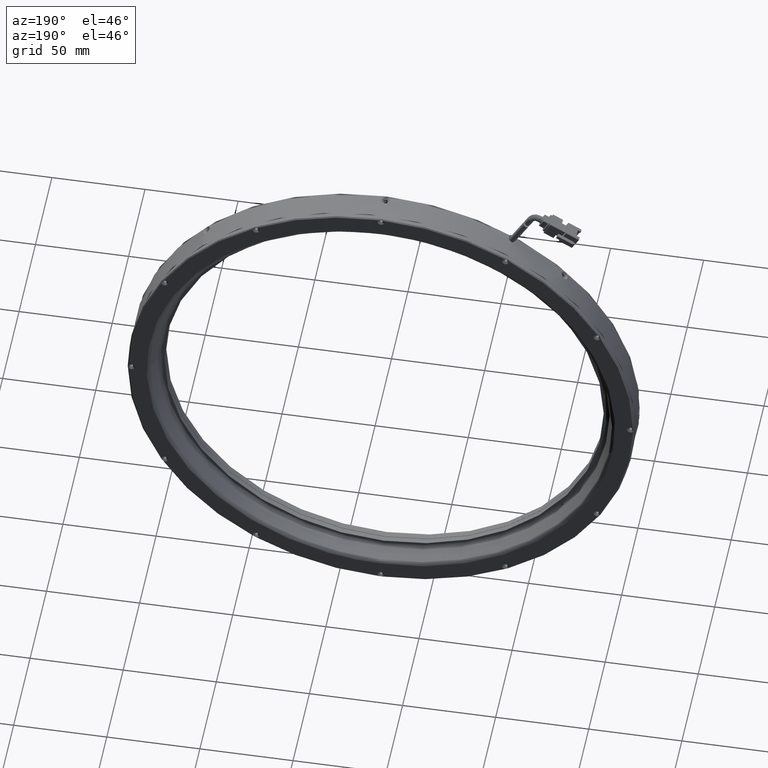
[diagram: clean part render]
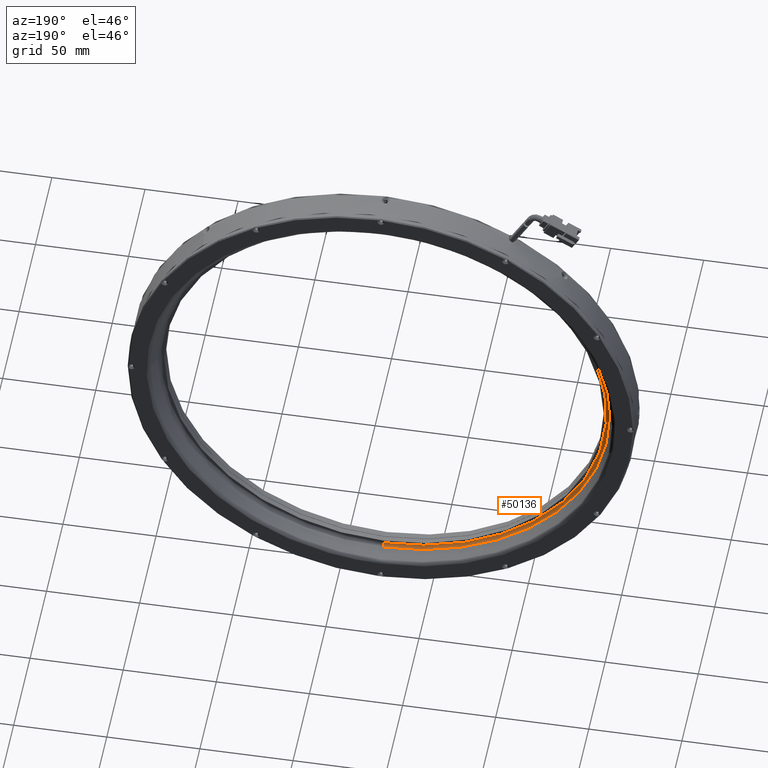
[diagram: same view with one face highlighted and labeled with its STEP entity id]
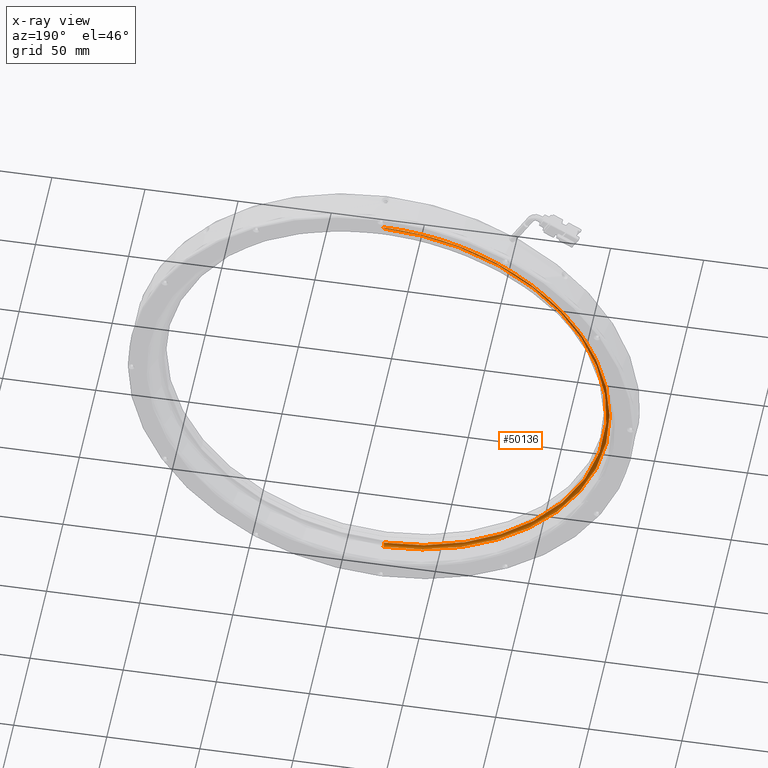
[diagram: x-ray of the same camera — body ghosted, the highlighted face saturated]
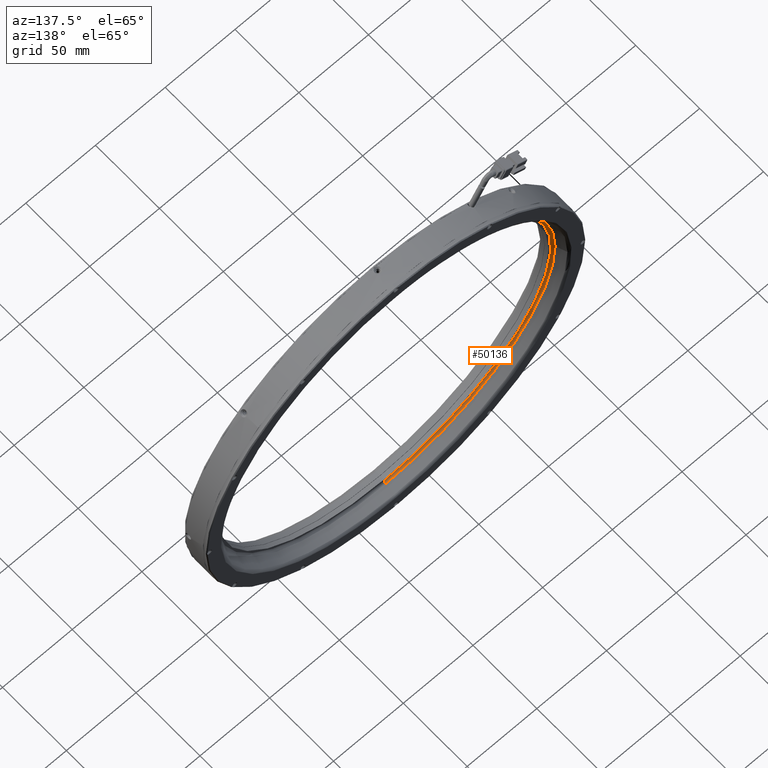
[diagram: same view with one face highlighted and labeled with its STEP entity id]
A machine part, auxiliary view. The second image highlights one B-rep face of the part: STEP entity #50136.
The next image is the same camera in x-ray: the body ghosted, the highlighted face saturated — about 0% of this face is hidden behind the body in this view.
A second angle (auxiliary view) of the same face is appended — the face is thin or edge-on in the first view.
In plain terms, the highlighted face is a freeform B-spline surface patch.
Its self-contained STEP definition (entity closure, byte-faithful):
#655 = CARTESIAN_POINT ( 'NONE',  ( -142.3293162726967000, 5.069982640997490200, -11.14572356873706100 ) ) ;
#1112 = CARTESIAN_POINT ( 'NONE',  ( -142.3763801926151900, 5.069982640997490200, 10.63016265927367400 ) ) ;
#1116 = FACE_OUTER_BOUND ( 'NONE', #24404, .T. ) ;
#1554 = CARTESIAN_POINT ( 'NONE',  ( -139.1158593632203000, 5.069982640997489300, 29.67247452022851900 ) ) ;
#1779 = EDGE_CURVE ( 'NONE', #97120, #31714, #10542, .T. ) ;
#2014 = CARTESIAN_POINT ( 'NONE',  ( -134.5462056487579000, 5.069982640997487500, 43.77693603782415700 ) ) ;
#2472 = CARTESIAN_POINT ( 'NONE',  ( -125.2685960343780400, 5.069982640997489300, 62.42037116927498600 ) ) ;
#2927 = CARTESIAN_POINT ( 'NONE',  ( -113.5124740757989300, 5.069982640997489300, 78.55408161243610700 ) ) ;
#3344 = CARTESIAN_POINT ( 'NONE',  ( -89.46998820333249100, 5.069982640997488400, 99.56662697933637700 ) ) ;
#3798 = CARTESIAN_POINT ( 'NONE',  ( -73.73980043955505400, 5.069982640997487500, 108.4186332954707600 ) ) ;
#4099 = CARTESIAN_POINT ( 'NONE',  ( -23.30300868215380200, 5.069982640997503500, 119.5469150082056200 ) ) ;
#4264 = CARTESIAN_POINT ( 'NONE',  ( -56.60891110841927800, 5.069982640997488400, 114.8138001519853800 ) ) ;
#4531 = CARTESIAN_POINT ( 'NONE',  ( -264.1360663754177300, 5.069982640997496400, 120.4165288466319800 ) ) ;
#4692 = CARTESIAN_POINT ( 'NONE',  ( -43.23247024929435900, 5.069982640997488400, 117.8885876832204900 ) ) ;
#5230 = CARTESIAN_POINT ( 'NONE',  ( -27.78526670614666500, 5.069982640997488400, -119.4864677336735800 ) ) ;
#5695 = CARTESIAN_POINT ( 'NONE',  ( -44.65719858477398000, 5.069982640997489300, -117.6243496854076100 ) ) ;
#6143 = CARTESIAN_POINT ( 'NONE',  ( -58.08014844089670700, 5.069982640997488400, -114.3933952819071900 ) ) ;
#6620 = CARTESIAN_POINT ( 'NONE',  ( -77.43235357023621600, 5.069982640997488400, -106.5907609495086900 ) ) ;
#7085 = CARTESIAN_POINT ( 'NONE',  ( -92.96812802175973900, 5.069982640997488400, -97.18858226209849200 ) ) ;
#7211 = ORIENTED_EDGE ( 'NONE', *, *, #30860, .T. ) ;
#7398 = B_SPLINE_CURVE_WITH_KNOTS ( 'NONE', 3,
 ( #67650, #130162, #5230, #78045, #15784, #88554, #26249, #99108, #36755, #109526, #47207, #120086, #57646, #130620, #68096, #5695, #78509, #16224, #89023, #26693, #99558, #37179, #110007, #47641, #120531, #58119, #131075, #68538, #6143, #78995, #16668, #89480, #27166, #100018, #37666, #110451, #48092, #120979, #58565, #131507, #68974, #6620, #79437, #17101, #89944, #27625, #100461, #38098, #110879, #48536, #121424, #59017, #131958, #69453, #7085, #79884, #17554, #90385, #28066, #100883, #38547, #111310, #49005, #121875, #59480, #132400, #69900, #7540, #80317, #17983, #90845, #28492, #101322, #39003, #111773, #49436, #122340, #59914, #132840, #70335, #7976, #80765, #18429, #91296, #28926, #101762, #39453, #112197, #49895, #122797, #60362, #133267, #70778, #8426, #81202, #18874, #91740, #29375, #102226, #39898, #112642, #50336, #123242, #60779, #133725, #71228, #8868, #81623, #21200, #94023, #31683, #104541, #42237, #115037, #52628, #125556, #63075, #655, #73510, #11221, #83960, #21669, #94491, #32138, #104997, #42688, #115486, #53050, #125999, #63522, #1112, #73948, #11690, #84384, #22138, #94949, #32615, #105438, #43133, #115934, #53521, #126437, #63946, #1554, #74410, #12134, #84812, #22576, #95416, #33051, #105894, #43602, #116389, #53947, #126886, #64402, #2014, #74854, #12589, #85254, #23047, #95866, #33500, #106323, #44049, #116842, #54393, #127329, #64846, #2472, #75274, #13028, #85729, #23491, #96307, #33938, #106767, #44490, #117294, #54869, #127797, #65297, #2927, #75710, #13462, #86186, #23935, #96726, #34409, #107241, #44939, #117732, #55308, #128254, #65728, #3344, #76167, #13912, #86636, #24345, #97210, #34856, #107679, #45367, #118186, #55755, #128692, #66196, #3798, #76623, #14347, #87088, #24802, #97663, #35305, #108109, #45802, #118646, #56189, #129128, #66644, #4264, #77055, #14786, #87557, #25242, #98111, #35738, #108567, #46227, #119094, #56629, #129590, #67083, #4692, #77494, #15241, #88008, #25685, #98555, #36190, #109000, #46670, #119532, #57072, #130067 ),
 .UNSPECIFIED., .F., .F.,
 ( 4, 1, 1, 1, 1, 1, 2, 2, 1, 1, 1, 1, 1, 2, 2, 1, 1, 1, 1, 1, 2, 2, 1, 1, 1, 1, 1, 2, 2, 1, 1, 1, 1, 2, 2, 1, 1, 1, 1, 2, 2, 1, 1, 1, 2, 2, 2, 1, 1, 1, 2, 2, 1, 1, 1, 1, 2, 2, 1, 1, 1, 1, 2, 2, 1, 1, 1, 1, 1, 2, 2, 1, 1, 1, 1, 1, 2, 2, 1, 1, 1, 1, 1, 2, 2, 1, 1, 1, 1, 1, 2, 2, 2, 1, 1, 1, 1, 1, 2, 2, 1, 1, 1, 1, 1, 2, 2, 1, 1, 1, 1, 1, 2, 2, 1, 1, 1, 1, 1, 2, 2, 1, 1, 1, 1, 2, 2, 1, 1, 1, 1, 2, 2, 1, 1, 1, 2, 2, 2, 1, 1, 1, 2, 2, 1, 1, 1, 1, 2, 2, 1, 1, 1, 1, 2, 2, 1, 1, 1, 1, 1, 2, 2, 1, 1, 1, 1, 1, 2, 2, 1, 1, 1, 1, 1, 2, 2, 1, 1, 1, 1, 1, 2, 2, 4 ),
 ( 0.0000000000000000000, 0.01562499999999889300, 0.02343749999999832800, 0.02734374999999802900, 0.02929687499999788400, 0.03027343749999781800, 0.03076171874999781400, 0.03124999999999780700, 0.04687499999999895200, 0.05468749999999950700, 0.05859374999999979200, 0.06054687499999989600, 0.06152343749999995800, 0.06201171874999995800, 0.06249999999999995800, 0.07812499999999966700, 0.08593749999999950000, 0.08984374999999940300, 0.09179687499999938900, 0.09277343749999936200, 0.09326171874999936200, 0.09374999999999934800, 0.1093749999999986800, 0.1171874999999983200, 0.1210937499999981700, 0.1230468749999980400, 0.1240234374999979700, 0.1245117187499979300, 0.1249999999999979200, 0.1406249999999960300, 0.1484374999999950600, 0.1523437499999945300, 0.1542968749999942500, 0.1552734374999941700, 0.1562499999999940600, 0.1718749999999928400, 0.1796874999999921500, 0.1835937499999918100, 0.1855468749999916700, 0.1865234374999916200, 0.1874999999999915300, 0.2031249999999916200, 0.2109374999999916500, 0.2148437499999917000, 0.2167968749999917800, 0.2187499999999918700, 0.2499999999999943900, 0.2656249999999956100, 0.2734374999999962300, 0.2773437499999965600, 0.2792968749999967800, 0.2812499999999969500, 0.2968749999999984500, 0.3046874999999991700, 0.3085937499999995000, 0.3105468749999997200, 0.3115234374999998300, 0.3125000000000000000, 0.3281250000000015000, 0.3359375000000022800, 0.3398437500000026100, 0.3417968750000027800, 0.3427734375000028300, 0.3437500000000028300, 0.3593750000000027800, 0.3671875000000027200, 0.3710937500000027200, 0.3730468750000027800, 0.3740234375000027800, 0.3745117187500027200, 0.3750000000000026600, 0.3906250000000002200, 0.3984374999999990000, 0.4023437499999983900, 0.4042968749999980600, 0.4052734374999978900, 0.4057617187499978400, 0.4062499999999978400, 0.4218749999999965600, 0.4296874999999959500, 0.4335937499999956100, 0.4355468749999954500, 0.4365234374999953900, 0.4370117187499953400, 0.4374999999999953400, 0.4531249999999937800, 0.4609374999999930100, 0.4648437499999926200, 0.4667968749999923900, 0.4677734374999922800, 0.4682617187499921700, 0.4687499999999921200, 0.4999999999999885600, 0.5156249999999867900, 0.5234374999999859000, 0.5273437499999855700, 0.5292968749999852300, 0.5302734374999852300, 0.5307617187499851200, 0.5312499999999851200, 0.5468749999999827900, 0.5546874999999815700, 0.5585937499999810200, 0.5605468749999806800, 0.5615234374999805700, 0.5620117187499804600, 0.5624999999999804600, 0.5781249999999786800, 0.5859374999999778000, 0.5898437499999773500, 0.5917968749999770200, 0.5927734374999769100, 0.5932617187499768000, 0.5937499999999768000, 0.6093749999999759100, 0.6171874999999754600, 0.6210937499999753500, 0.6230468749999751300, 0.6240234374999751300, 0.6245117187499751300, 0.6249999999999750200, 0.6406249999999739100, 0.6484374999999733500, 0.6523437499999731300, 0.6542968749999730200, 0.6552734374999729100, 0.6562499999999728000, 0.6718749999999716900, 0.6796874999999711300, 0.6835937499999709100, 0.6855468749999709100, 0.6865234374999709100, 0.6874999999999709100, 0.7031249999999709100, 0.7109374999999709100, 0.7148437499999709100, 0.7167968749999709100, 0.7187499999999708000, 0.7499999999999708000, 0.7656249999999709100, 0.7734374999999709100, 0.7773437499999709100, 0.7792968749999710200, 0.7812499999999711300, 0.7968749999999713600, 0.8046874999999714700, 0.8085937499999715800, 0.8105468749999716900, 0.8115234374999716900, 0.8124999999999718000, 0.8281249999999730200, 0.8359374999999735800, 0.8398437499999738000, 0.8417968749999740200, 0.8427734374999741300, 0.8437499999999743500, 0.8593749999999764600, 0.8671874999999775700, 0.8710937499999780200, 0.8730468749999782400, 0.8740234374999783500, 0.8745117187499784600, 0.8749999999999785700, 0.8906249999999810200, 0.8984374999999822400, 0.9023437499999827900, 0.9042968749999831200, 0.9052734374999832400, 0.9057617187499833500, 0.9062499999999834600, 0.9218749999999866800, 0.9296874999999883400, 0.9335937499999891200, 0.9355468749999895600, 0.9365234374999897900, 0.9370117187499899000, 0.9374999999999900100, 0.9531249999999928900, 0.9609374999999943400, 0.9648437499999950000, 0.9667968749999953400, 0.9677734374999955600, 0.9682617187499955600, 0.9687499999999956700, 1.000000000000000000 ),
 .UNSPECIFIED. ) ;
#7540 = CARTESIAN_POINT ( 'NONE',  ( -115.7879319277401300, 5.069982640997489300, -75.75005846452170000 ) ) ;
#7976 = CARTESIAN_POINT ( 'NONE',  ( -128.6688690955014400, 5.069982640997488400, -56.47970943259198200 ) ) ;
#8426 = CARTESIAN_POINT ( 'NONE',  ( -134.4338042642546600, 5.069982640997487500, -44.06149078274599200 ) ) ;
#8868 = CARTESIAN_POINT ( 'NONE',  ( -140.5403773136674500, 5.069982640997487500, -23.39376508023037400 ) ) ;
#10542 = CIRCLE ( 'NONE', #55468, 121.4263002497774600 ) ;
#11221 = CARTESIAN_POINT ( 'NONE',  ( -142.3558908563925300, 5.069982640997489300, -10.85723855600854800 ) ) ;
#11690 = CARTESIAN_POINT ( 'NONE',  ( -142.1996916718607900, 5.069982640997488400, 12.58893874801731800 ) ) ;
#12134 = CARTESIAN_POINT ( 'NONE',  ( -138.4627273666401900, 5.069982640997489300, 32.09058503302802000 ) ) ;
#12589 = CARTESIAN_POINT ( 'NONE',  ( -134.4793276859653600, 5.069982640997491100, 43.94650097621106300 ) ) ;
#13028 = CARTESIAN_POINT ( 'NONE',  ( -123.8468937346277100, 5.069982640997489300, 64.67230532272036200 ) ) ;
#13462 = CARTESIAN_POINT ( 'NONE',  ( -106.3763729345818900, 5.069982640997489300, 85.99149114784505300 ) ) ;
#13525 = EDGE_CURVE ( 'NONE', #39169, #128696, #7398, .T. ) ;
#13912 = CARTESIAN_POINT ( 'NONE',  ( -88.93482222227910900, 5.069982640997490200, 99.91970163262510600 ) ) ;
#14347 = CARTESIAN_POINT ( 'NONE',  ( -68.92920628659278700, 5.069982640997488400, 110.4995833237091200 ) ) ;
#14398 =( BOUNDED_SURFACE ( )  B_SPLINE_SURFACE ( 3, 3, ( 
 ( #4099, #118928, #56484, #129447 ),
 ( #66926, #4531, #77338, #15086 ),
 ( #87852, #25529, #98407, #36048 ),
 ( #108837, #46515, #119377, #56925 ) ),
 .UNSPECIFIED., .F., .F., .F. ) 
 B_SPLINE_SURFACE_WITH_KNOTS ( ( 4, 4 ),
 ( 4, 4 ),
 ( 0.0000000000000000000, 1.000000000000000000 ),
 ( 0.0000000000000000000, 1.000000000000000000 ),
 .UNSPECIFIED. ) 
 GEOMETRIC_REPRESENTATION_ITEM ( )  RATIONAL_B_SPLINE_SURFACE ( (
 ( 1.000000000000000000, 0.3333333333333334300, 0.3333333333333334300, 1.000000000000000000),
 ( 0.8794346961926617900, 0.2931448987308873400, 0.2931448987308873400, 0.8794346961926617900),
 ( 0.8794346961926617900, 0.2931448987308873400, 0.2931448987308873400, 0.8794346961926617900),
 ( 1.000000000000000000, 0.3333333333333334300, 0.3333333333333334300, 1.000000000000000000) ) ) 
 REPRESENTATION_ITEM ( '' )  SURFACE ( )  );
#14786 = CARTESIAN_POINT ( 'NONE',  ( -56.31496570857218100, 5.069982640997488400, 114.8985616647144500 ) ) ;
#15086 = CARTESIAN_POINT ( 'NONE',  ( -23.30300868215384100, 5.069982640997496400, -120.4165288466319900 ) ) ;
#15241 = CARTESIAN_POINT ( 'NONE',  ( -37.27162719473537300, 5.069982640997489300, 118.7343998306910200 ) ) ;
#15784 = CARTESIAN_POINT ( 'NONE',  ( -32.48115745155818200, 5.069982640997489300, -119.1955652249879900 ) ) ;
#16224 = CARTESIAN_POINT ( 'NONE',  ( -44.94216720284956800, 5.069982640997488400, -117.5721701990633500 ) ) ;
#16668 = CARTESIAN_POINT ( 'NONE',  ( -64.10793457726158800, 5.069982640997487500, -112.3748798105198100 ) ) ;
#17101 = CARTESIAN_POINT ( 'NONE',  ( -77.98824526685218900, 5.069982640997490200, -106.3061887039242800 ) ) ;
#17554 = CARTESIAN_POINT ( 'NONE',  ( -97.25240130481701300, 5.069982640997488400, -93.93305799209170500 ) ) ;
#17983 = CARTESIAN_POINT ( 'NONE',  ( -117.4072683893584600, 5.069982640997488400, -73.75678564310601400 ) ) ;
#18429 = CARTESIAN_POINT ( 'NONE',  ( -129.2606117335226700, 5.069982640997487500, -55.35764079730785200 ) ) ;
#18874 = CARTESIAN_POINT ( 'NONE',  ( -136.1902368079366300, 5.069982640997487500, -39.42918892275854900 ) ) ;
#21200 = CARTESIAN_POINT ( 'NONE',  ( -140.7775190343380100, 5.069982640997489300, -22.16370795991277400 ) ) ;
#21669 = CARTESIAN_POINT ( 'NONE',  ( -142.6887468731057700, 5.069982640997489300, -7.168122897540309100 ) ) ;
#22138 = CARTESIAN_POINT ( 'NONE',  ( -141.4072578230683900, 5.069982640997489300, 18.55711239737083000 ) ) ;
#22576 = CARTESIAN_POINT ( 'NONE',  ( -138.3007485749068900, 5.069982640997490200, 32.66479163194701800 ) ) ;
#23047 = CARTESIAN_POINT ( 'NONE',  ( -132.5483418326748200, 5.069982640997488400, 48.62023508319910500 ) ) ;
#23186 = CIRCLE ( 'NONE', #52037, 1.999999999999988000 ) ;
#23491 = CARTESIAN_POINT ( 'NONE',  ( -123.5019492115782100, 5.069982640997487500, 65.20470601482391300 ) ) ;
#23935 = CARTESIAN_POINT ( 'NONE',  ( -101.4249430001587300, 5.069982640997488400, 90.50031236083684400 ) ) ;
#24345 = CARTESIAN_POINT ( 'NONE',  ( -87.02050243244293900, 5.069982640997489300, 101.1714767661222000 ) ) ;
#24404 = EDGE_LOOP ( 'NONE', ( #131607, #63255, #7211, #39750, #71213 ) ) ;
#24802 = CARTESIAN_POINT ( 'NONE',  ( -67.71384576785267500, 5.069982640997487500, 110.9917588797148900 ) ) ;
#25242 = CARTESIAN_POINT ( 'NONE',  ( -54.36120782089197700, 5.069982640997488400, 115.4577788642229900 ) ) ;
#25529 = CARTESIAN_POINT ( 'NONE',  ( -265.5607582823955700, 5.568772647443617000, 121.1288748001209000 ) ) ;
#25685 = CARTESIAN_POINT ( 'NONE',  ( -34.85247696615618900, 5.069982640997489300, 118.9881103973558500 ) ) ;
#26249 = CARTESIAN_POINT ( 'NONE',  ( -33.65398767645235300, 5.069982640997489300, -119.0980467703718100 ) ) ;
#26693 = CARTESIAN_POINT ( 'NONE',  ( -46.93408070623054600, 5.069982640997487500, -117.2035954076872300 ) ) ;
#26963 = DIRECTION ( 'NONE',  ( 0.0000000000000000000, -1.714347029342173900E-016, 1.000000000000000000 ) ) ;
#27166 = CARTESIAN_POINT ( 'NONE',  ( -66.51023254471763800, 5.069982640997489300, -111.4661722765620300 ) ) ;
#27427 = EDGE_CURVE ( 'NONE', #128696, #28217, #23186, .T. ) ;
#27453 = DIRECTION ( 'NONE',  ( 0.0000000000000000000, 1.000000000000000000, 0.0000000000000000000 ) ) ;
#27625 = CARTESIAN_POINT ( 'NONE',  ( -80.01415020028372300, 5.069982640997488400, -105.2588864510658500 ) ) ;
#27737 = CARTESIAN_POINT ( 'NONE',  ( -23.30300868215381600, 6.385942354346138200, -2.420481350073888600E-014 ) ) ;
#28066 = CARTESIAN_POINT ( 'NONE',  ( -98.25443734882202300, 5.069982640997487500, -93.13331845071489600 ) ) ;
#28217 = VERTEX_POINT ( 'NONE', #46603 ) ;
#28492 = CARTESIAN_POINT ( 'NONE',  ( -121.3608127921817800, 5.069982640997487500, -68.39583372180571500 ) ) ;
#28926 = CARTESIAN_POINT ( 'NONE',  ( -129.4372353913615300, 5.069982640997487500, -55.01823835235516900 ) ) ;
#29375 = CARTESIAN_POINT ( 'NONE',  ( -137.7539016019563300, 5.069982640997487500, -34.53813683208505100 ) ) ;
#30860 = EDGE_CURVE ( 'NONE', #39169, #97120, #81357, .T. ) ;
#31011 = DIRECTION ( 'NONE',  ( 0.0000000000000000000, 1.000000000000000000, 0.0000000000000000000 ) ) ;
#31683 = CARTESIAN_POINT ( 'NONE',  ( -140.8323729804554000, 5.069982640997490200, -21.87046235514133800 ) ) ;
#31714 = VERTEX_POINT ( 'NONE', #121015 ) ;
#32138 = CARTESIAN_POINT ( 'NONE',  ( -142.8499157314014400, 5.069982640997489300, 1.794105595126073800 ) ) ;
#32393 = DIRECTION ( 'NONE',  ( 1.000000000000000000, 0.0000000000000000000, 0.0000000000000000000 ) ) ;
#32615 = CARTESIAN_POINT ( 'NONE',  ( -140.9994174189705200, 5.069982640997489300, 20.95509553348082200 ) ) ;
#33051 = CARTESIAN_POINT ( 'NONE',  ( -138.2521283586932600, 5.069982640997489300, 32.83547747282507600 ) ) ;
#33500 = CARTESIAN_POINT ( 'NONE',  ( -130.2879369931431500, 5.069982640997488400, 53.34916087262487800 ) ) ;
#33938 = CARTESIAN_POINT ( 'NONE',  ( -122.2401264151493800, 5.069982640997488400, 67.13510166594686300 ) ) ;
#34409 = CARTESIAN_POINT ( 'NONE',  ( -99.45125790214480300, 5.069982640997488400, 92.15735801064822400 ) ) ;
#34856 = CARTESIAN_POINT ( 'NONE',  ( -81.34381831504944700, 5.069982640997489300, 104.5205631487813100 ) ) ;
#35305 = CARTESIAN_POINT ( 'NONE',  ( -67.42372763913921600, 5.069982640997487500, 111.1072954530670800 ) ) ;
#35738 = CARTESIAN_POINT ( 'NONE',  ( -48.33287841258982800, 5.069982640997488400, 116.9041396603956600 ) ) ;
#36048 = CARTESIAN_POINT ( 'NONE',  ( -23.30300868215384100, 5.568772647443616100, -121.1288748001209000 ) ) ;
#36190 = CARTESIAN_POINT ( 'NONE',  ( -34.27564801480992400, 5.069982640997488400, 119.0423023966958300 ) ) ;
#36755 = CARTESIAN_POINT ( 'NONE',  ( -33.93316587115103300, 5.069982640997490200, -119.0733720040100800 ) ) ;
#37179 = CARTESIAN_POINT ( 'NONE',  ( -52.97548320126330200, 5.069982640997488400, -115.8128506813079600 ) ) ;
#37666 = CARTESIAN_POINT ( 'NONE',  ( -67.07994471991499100, 5.069982640997488400, -111.2431969666297000 ) ) ;
#38098 = CARTESIAN_POINT ( 'NONE',  ( -85.72337985174911500, 5.069982640997488400, -101.9655873520495200 ) ) ;
#38547 = CARTESIAN_POINT ( 'NONE',  ( -101.8570902945375800, 5.069982640997488400, -90.20946539364432200 ) ) ;
#39003 = CARTESIAN_POINT ( 'NONE',  ( -122.8696356614254600, 5.069982640997488400, -66.16697952125393600 ) ) ;
#39169 = VERTEX_POINT ( 'NONE', #77299 ) ;
#39453 = CARTESIAN_POINT ( 'NONE',  ( -131.7216419773442300, 5.069982640997487500, -50.43679175799056900 ) ) ;
#39750 = ORIENTED_EDGE ( 'NONE', *, *, #1779, .T. ) ;
#39898 = CARTESIAN_POINT ( 'NONE',  ( -138.1168088340535300, 5.069982640997489300, -33.30590242649610400 ) ) ;
#42237 = CARTESIAN_POINT ( 'NONE',  ( -141.1915963653602300, 5.069982640997489300, -19.92946156714929300 ) ) ;
#42688 = CARTESIAN_POINT ( 'NONE',  ( -142.6131614189764600, 5.069982640997488400, 7.613780051644075000 ) ) ;
#43133 = CARTESIAN_POINT ( 'NONE',  ( -140.8961007041284300, 5.069982640997488400, 21.52517804680522700 ) ) ;
#43602 = CARTESIAN_POINT ( 'NONE',  ( -136.8198712000258900, 5.069982640997488400, 37.57804169013157700 ) ) ;
#44049 = CARTESIAN_POINT ( 'NONE',  ( -129.7232397523413600, 5.069982640997487500, 54.46297750132797000 ) ) ;
#44490 = CARTESIAN_POINT ( 'NONE',  ( -118.3398687832431900, 5.069982640997488400, 72.53494511317785500 ) ) ;
#44939 = CARTESIAN_POINT ( 'NONE',  ( -98.85238159157852100, 5.069982640997487500, 92.64892463435890600 ) ) ;
#45367 = CARTESIAN_POINT ( 'NONE',  ( -78.99790893219180500, 5.069982640997487500, 105.7811796668925000 ) ) ;
#45802 = CARTESIAN_POINT ( 'NONE',  ( -65.48667327898617400, 5.069982640997489300, 111.8742004634071100 ) ) ;
#46227 = CARTESIAN_POINT ( 'NONE',  ( -45.87701936108668100, 5.069982640997488400, 117.3966802556131600 ) ) ;
#46515 = CARTESIAN_POINT ( 'NONE',  ( -266.1556091817086600, 6.385942354346140000, 121.4263002497774700 ) ) ;
#46603 = CARTESIAN_POINT ( 'NONE',  ( -23.30300868215380200, 6.385942354346127600, 121.4263002497774400 ) ) ;
#46670 = CARTESIAN_POINT ( 'NONE',  ( -34.10066580673473200, 5.069982640997487500, 119.0582995390713400 ) ) ;
#47207 = CARTESIAN_POINT ( 'NONE',  ( -35.89194742991163900, 5.069982640997489300, -118.8966829897295300 ) ) ;
#47641 = CARTESIAN_POINT ( 'NONE',  ( -55.39359371483212900, 5.069982640997488400, -115.1597186845618100 ) ) ;
#48092 = CARTESIAN_POINT ( 'NONE',  ( -67.24950965836171700, 5.069982640997487500, -111.1763190038129100 ) ) ;
#48536 = CARTESIAN_POINT ( 'NONE',  ( -87.97531400497425100, 5.069982640997488400, -100.5438850524194000 ) ) ;
#49005 = CARTESIAN_POINT ( 'NONE',  ( -109.2944998299319900, 5.069982640997489300, -83.07336425252154300 ) ) ;
#49436 = CARTESIAN_POINT ( 'NONE',  ( -123.2227103147595100, 5.069982640997490200, -65.63181354014788800 ) ) ;
#49895 = CARTESIAN_POINT ( 'NONE',  ( -133.8025920057402500, 5.069982640997488400, -45.62619760469687700 ) ) ;
#50136 = ADVANCED_FACE ( 'NONE', ( #1116 ), #14398, .F. ) ;
#50336 = CARTESIAN_POINT ( 'NONE',  ( -138.2015703468432000, 5.069982640997490200, -33.01195702648592300 ) ) ;
#52037 = AXIS2_PLACEMENT_3D ( 'NONE', #62085, #135098, #72529 ) ;
#52628 = CARTESIAN_POINT ( 'NONE',  ( -142.0374085128261200, 5.069982640997488400, -13.96861851259308200 ) ) ;
#53050 = CARTESIAN_POINT ( 'NONE',  ( -142.4346602430898700, 5.069982640997488400, 9.960122543421452000 ) ) ;
#53521 = CARTESIAN_POINT ( 'NONE',  ( -140.8649922341656400, 5.069982640997488400, 21.69443560936145200 ) ) ;
#53947 = CARTESIAN_POINT ( 'NONE',  ( -135.0770568511297500, 5.069982640997489300, 42.40815932018135500 ) ) ;
#54393 = CARTESIAN_POINT ( 'NONE',  ( -129.5529167383052400, 5.069982640997487500, 54.79450856491373400 ) ) ;
#54869 = CARTESIAN_POINT ( 'NONE',  ( -116.7570212646108100, 5.069982640997487500, 74.55119897400837200 ) ) ;
#55308 = CARTESIAN_POINT ( 'NONE',  ( -94.62311631404753600, 5.069982640997489300, 95.98068342818328300 ) ) ;
#55468 = AXIS2_PLACEMENT_3D ( 'NONE', #27737, #27453, #26963 ) ;
#55755 = CARTESIAN_POINT ( 'NONE',  ( -78.43560703072988400, 5.069982640997489300, 106.0748696230569100 ) ) ;
#56189 = CARTESIAN_POINT ( 'NONE',  ( -59.47823141533473300, 5.069982640997489300, 113.9495888095498700 ) ) ;
#56484 = CARTESIAN_POINT ( 'NONE',  ( -262.3968386985650300, 5.069982640997502600, -119.5469150082056000 ) ) ;
#56629 = CARTESIAN_POINT ( 'NONE',  ( -45.29078143679082300, 5.069982640997488400, 117.5074748831675000 ) ) ;
#56925 = CARTESIAN_POINT ( 'NONE',  ( -23.30300868215384500, 6.385942354346140900, -121.4263002497774800 ) ) ;
#57072 = CARTESIAN_POINT ( 'NONE',  ( -26.89070103917291000, 5.069982640997487500, 119.5469150082056000 ) ) ;
#57646 = CARTESIAN_POINT ( 'NONE',  ( -41.86012107918406100, 5.069982640997487500, -118.1042491409441900 ) ) ;
#58119 = CARTESIAN_POINT ( 'NONE',  ( -55.96780031399630700, 5.069982640997488400, -114.9977398927756800 ) ) ;
#58565 = CARTESIAN_POINT ( 'NONE',  ( -71.92324376552829800, 5.069982640997488400, -109.2453331504423800 ) ) ;
#59017 = CARTESIAN_POINT ( 'NONE',  ( -88.50771469700779900, 5.069982640997487500, -100.1989405294080500 ) ) ;
#59480 = CARTESIAN_POINT ( 'NONE',  ( -113.8033210429029400, 5.069982640997488400, -78.12193431812762900 ) ) ;
#59914 = CARTESIAN_POINT ( 'NONE',  ( -124.4744854480664900, 5.069982640997488400, -63.71749375066697500 ) ) ;
#60362 = CARTESIAN_POINT ( 'NONE',  ( -134.2947675618347300, 5.069982640997487500, -44.41083708577031800 ) ) ;
#60779 = CARTESIAN_POINT ( 'NONE',  ( -138.7607875462476000, 5.069982640997489300, -31.05819913950630400 ) ) ;
#62085 = CARTESIAN_POINT ( 'NONE',  ( -23.30300868215380200, 7.069982640997497300, 119.5469150082056300 ) ) ;
#63075 = CARTESIAN_POINT ( 'NONE',  ( -142.2911190795038000, 5.069982640997488400, -11.54946828400592400 ) ) ;
#63255 = ORIENTED_EDGE ( 'NONE', *, *, #13525, .F. ) ;
#63522 = CARTESIAN_POINT ( 'NONE',  ( -142.3862968417030600, 5.069982640997489300, 10.51849889856860500 ) ) ;
#63946 = CARTESIAN_POINT ( 'NONE',  ( -139.9186026961472200, 5.069982640997488400, 26.43218414293765100 ) ) ;
#64402 = CARTESIAN_POINT ( 'NONE',  ( -134.6133779944145200, 5.069982640997489300, 43.60611809166950800 ) ) ;
#64846 = CARTESIAN_POINT ( 'NONE',  ( -127.0959277928183600, 5.069982640997486600, 59.37780717142943800 ) ) ;
#65297 = CARTESIAN_POINT ( 'NONE',  ( -116.2762099096203500, 5.069982640997488400, 75.14995372985778500 ) ) ;
#65728 = CARTESIAN_POINT ( 'NONE',  ( -90.21633472418878300, 5.069982640997486600, 99.06835436986817500 ) ) ;
#66196 = CARTESIAN_POINT ( 'NONE',  ( -76.43447360064008900, 5.069982640997489300, 107.1097880024575500 ) ) ;
#66644 = CARTESIAN_POINT ( 'NONE',  ( -57.02007686041867600, 5.069982640997488400, 114.6940759176512800 ) ) ;
#66926 = CARTESIAN_POINT ( 'NONE',  ( -23.30300868215380200, 5.069982640997496400, 120.4165288466319500 ) ) ;
#67083 = CARTESIAN_POINT ( 'NONE',  ( -45.11311961832115000, 5.069982640997487500, 117.5405775433956600 ) ) ;
#67650 = CARTESIAN_POINT ( 'NONE',  ( -23.30300868215381600, 5.069982640997495500, -119.5469150082056700 ) ) ;
#68096 = CARTESIAN_POINT ( 'NONE',  ( -44.25810421552817800, 5.069982640997487500, -117.6964087368259700 ) ) ;
#68481 = AXIS2_PLACEMENT_3D ( 'NONE', #93345, #31011, #103847 ) ;
#68538 = CARTESIAN_POINT ( 'NONE',  ( -56.13848615499492200, 5.069982640997488400, -114.9491196765329700 ) ) ;
#68974 = CARTESIAN_POINT ( 'NONE',  ( -76.65216955485544800, 5.069982640997488400, -106.9849283109549400 ) ) ;
#69453 = CARTESIAN_POINT ( 'NONE',  ( -90.43811034840602800, 5.069982640997489300, -98.93711773276921000 ) ) ;
#69900 = CARTESIAN_POINT ( 'NONE',  ( -115.4603666927712900, 5.069982640997489300, -76.14824922003413100 ) ) ;
#70335 = CARTESIAN_POINT ( 'NONE',  ( -127.8235718306603400, 5.069982640997489300, -58.04080963339141900 ) ) ;
#70778 = CARTESIAN_POINT ( 'NONE',  ( -134.4103041352109600, 5.069982640997489300, -44.12071895700633900 ) ) ;
#71213 = ORIENTED_EDGE ( 'NONE', *, *, #114633, .T. ) ;
#71228 = CARTESIAN_POINT ( 'NONE',  ( -140.2071483423799200, 5.069982640997489300, -25.02986973144411600 ) ) ;
#72529 = DIRECTION ( 'NONE',  ( 0.0000000000000000000, 0.0000000000000000000, 1.000000000000000000 ) ) ;
#73510 = CARTESIAN_POINT ( 'NONE',  ( -142.3453110788480000, 5.069982640997489300, -10.97263933265715100 ) ) ;
#73948 = CARTESIAN_POINT ( 'NONE',  ( -142.3715534260479700, 5.069982640997487500, 10.68409841616850100 ) ) ;
#74410 = CARTESIAN_POINT ( 'NONE',  ( -138.6853022699654600, 5.069982640997489300, 31.28570126877756900 ) ) ;
#74854 = CARTESIAN_POINT ( 'NONE',  ( -134.5013352746074700, 5.069982640997488400, 43.89078428562240900 ) ) ;
#75274 = CARTESIAN_POINT ( 'NONE',  ( -124.3256710232035400, 5.069982640997487500, 63.92451668537561500 ) ) ;
#75710 = CARTESIAN_POINT ( 'NONE',  ( -110.7535829939998700, 5.069982640997489300, 81.61432052101214700 ) ) ;
#76167 = CARTESIAN_POINT ( 'NONE',  ( -89.14903411987450000, 5.069982640997488400, 99.77867184331961400 ) ) ;
#76623 = CARTESIAN_POINT ( 'NONE',  ( -70.54177730149103800, 5.069982640997490200, 109.8258884794901300 ) ) ;
#77055 = CARTESIAN_POINT ( 'NONE',  ( -56.43256190923974500, 5.069982640997488400, 114.8647104100352400 ) ) ;
#77299 = CARTESIAN_POINT ( 'NONE',  ( -23.30300868215381600, 5.069982640997495500, -119.5469150082056700 ) ) ;
#77338 = CARTESIAN_POINT ( 'NONE',  ( -264.1360663754177300, 5.069982640997496400, -120.4165288466319200 ) ) ;
#77494 = CARTESIAN_POINT ( 'NONE',  ( -40.48831266477833400, 5.069982640997487500, 118.3307126550720600 ) ) ;
#78045 = CARTESIAN_POINT ( 'NONE',  ( -30.91667295345830300, 5.069982640997487500, -119.3101631829550500 ) ) ;
#78509 = CARTESIAN_POINT ( 'NONE',  ( -44.82818672892722100, 5.069982640997489300, -117.5930920219773600 ) ) ;
#78995 = CARTESIAN_POINT ( 'NONE',  ( -60.88105037138635100, 5.069982640997488400, -113.5168625182371300 ) ) ;
#79437 = CARTESIAN_POINT ( 'NONE',  ( -77.76598618350585900, 5.069982640997488400, -106.4202310701767700 ) ) ;
#79884 = CARTESIAN_POINT ( 'NONE',  ( -95.83795379573244600, 5.069982640997489300, -95.03686010079239600 ) ) ;
#80317 = CARTESIAN_POINT ( 'NONE',  ( -115.9519333165325500, 5.069982640997488400, -75.54937290940181100 ) ) ;
#80765 = CARTESIAN_POINT ( 'NONE',  ( -129.0841883489604800, 5.069982640997488400, -55.69490025019298700 ) ) ;
#81202 = CARTESIAN_POINT ( 'NONE',  ( -135.1772091451566700, 5.069982640997486600, -42.18366459792024200 ) ) ;
#81357 = CIRCLE ( 'NONE', #110255, 1.999999999999988000 ) ;
#81623 = CARTESIAN_POINT ( 'NONE',  ( -140.6996889377140300, 5.069982640997488400, -22.57401067924790500 ) ) ;
#83960 = CARTESIAN_POINT ( 'NONE',  ( -142.3613079725559800, 5.069982640997487500, -10.79765988098143700 ) ) ;
#84384 = CARTESIAN_POINT ( 'NONE',  ( -141.8856746168365500, 5.069982640997488400, 15.35068976004027900 ) ) ;
#84812 = CARTESIAN_POINT ( 'NONE',  ( -138.3496158258031100, 5.069982640997489300, 32.49259451264721600 ) ) ;
#85254 = CARTESIAN_POINT ( 'NONE',  ( -133.7204596504169000, 5.069982640997487500, 45.86333840703873900 ) ) ;
#85459 = CARTESIAN_POINT ( 'NONE',  ( -23.30300868215381600, 6.385942354346148000, -121.4263002497774800 ) ) ;
#85729 = CARTESIAN_POINT ( 'NONE',  ( -123.6401360145977200, 5.069982640997488400, 64.99186814143125400 ) ) ;
#86186 = CARTESIAN_POINT ( 'NONE',  ( -104.1342907040081100, 5.069982640997486600, 88.12055808694388800 ) ) ;
#86636 = CARTESIAN_POINT ( 'NONE',  ( -88.82648056983021000, 5.069982640997490200, 99.99077839664228400 ) ) ;
#87088 = CARTESIAN_POINT ( 'NONE',  ( -68.11953091767715300, 5.069982640997488400, 110.8289475588709200 ) ) ;
#87557 = CARTESIAN_POINT ( 'NONE',  ( -56.25470304936995100, 5.069982640997488400, 114.9158576895855900 ) ) ;
#87852 = CARTESIAN_POINT ( 'NONE',  ( -23.30300868215380200, 5.568772647443616100, 121.1288748001208700 ) ) ;
#88008 = CARTESIAN_POINT ( 'NONE',  ( -35.65949238768705200, 5.069982640997487500, 118.9082120956151000 ) ) ;
#88554 = CARTESIAN_POINT ( 'NONE',  ( -33.26309504421913500, 5.069982640997487500, -119.1316548253524400 ) ) ;
#89023 = CARTESIAN_POINT ( 'NONE',  ( -44.99744429154189600, 5.069982640997488400, -117.5619835520061000 ) ) ;
#89480 = CARTESIAN_POINT ( 'NONE',  ( -65.71116800194184300, 5.069982640997489300, -111.7740481691355800 ) ) ;
#89944 = CARTESIAN_POINT ( 'NONE',  ( -78.09751724705230900, 5.069982640997489300, -106.2499080561597800 ) ) ;
#90385 = CARTESIAN_POINT ( 'NONE',  ( -97.85420765630296100, 5.069982640997488400, -93.45401258235271800 ) ) ;
#90845 = CARTESIAN_POINT ( 'NONE',  ( -119.2836921100607600, 5.069982640997488400, -71.32010763221481400 ) ) ;
#91296 = CARTESIAN_POINT ( 'NONE',  ( -129.3778783051850200, 5.069982640997489300, -55.13259834862255800 ) ) ;
#91740 = CARTESIAN_POINT ( 'NONE',  ( -137.2525974911731300, 5.069982640997488400, -36.17522273460862400 ) ) ;
#93345 = CARTESIAN_POINT ( 'NONE',  ( -23.30300868215381600, 6.385942354346138200, -2.420481350073888600E-014 ) ) ;
#94023 = CARTESIAN_POINT ( 'NONE',  ( -140.8104835653055300, 5.069982640997488400, -21.98777275473116400 ) ) ;
#94491 = CARTESIAN_POINT ( 'NONE',  ( -142.8499396082755200, 5.069982640997489300, -3.588211190252060600 ) ) ;
#94728 = CARTESIAN_POINT ( 'NONE',  ( -23.30300868215381600, 7.069982640997497300, -119.5469150082056700 ) ) ;
#94949 = CARTESIAN_POINT ( 'NONE',  ( -141.1400335354575800, 5.069982640997487500, 20.15641866352870800 ) ) ;
#95416 = CARTESIAN_POINT ( 'NONE',  ( -138.2680835462535600, 5.069982640997490200, 32.77956912088466600 ) ) ;
#95866 = CARTESIAN_POINT ( 'NONE',  ( -131.0613289547474100, 5.069982640997489300, 51.78196117080246100 ) ) ;
#96307 = CARTESIAN_POINT ( 'NONE',  ( -123.4334345183664800, 5.069982640997488400, 65.30987139294778400 ) ) ;
#96726 = CARTESIAN_POINT ( 'NONE',  ( -100.0468728728557700, 5.069982640997490200, 91.66415020901943900 ) ) ;
#97120 = VERTEX_POINT ( 'NONE', #85459 ) ;
#97210 = CARTESIAN_POINT ( 'NONE',  ( -84.43194606048881200, 5.069982640997490200, 102.7713335874992100 ) ) ;
#97663 = CARTESIAN_POINT ( 'NONE',  ( -67.53979910392079900, 5.069982640997487500, 111.0611342750615300 ) ) ;
#98111 = CARTESIAN_POINT ( 'NONE',  ( -51.59147111167633400, 5.069982640997488400, 116.1792588250990800 ) ) ;
#98407 = CARTESIAN_POINT ( 'NONE',  ( -265.5607582823955700, 5.568772647443617000, -121.1288748001208700 ) ) ;
#98555 = CARTESIAN_POINT ( 'NONE',  ( -34.44873225088905900, 5.069982640997488400, 119.0263075905458500 ) ) ;
#99108 = CARTESIAN_POINT ( 'NONE',  ( -33.82149676938863800, 5.069982640997488400, -119.0832891349879500 ) ) ;
#99558 = CARTESIAN_POINT ( 'NONE',  ( -49.73519282359939100, 5.069982640997487500, -116.6155940143154200 ) ) ;
#100018 = CARTESIAN_POINT ( 'NONE',  ( -66.90912677371446200, 5.069982640997489300, -111.3103693123049400 ) ) ;
#100461 = CARTESIAN_POINT ( 'NONE',  ( -82.68081585401030500, 5.069982640997488400, -103.7929191104316700 ) ) ;
#100883 = CARTESIAN_POINT ( 'NONE',  ( -98.45296241201489800, 5.069982640997488400, -92.97320122746656100 ) ) ;
#101322 = CARTESIAN_POINT ( 'NONE',  ( -122.3713630519011100, 5.069982640997488400, -66.91332604217548400 ) ) ;
#101762 = CARTESIAN_POINT ( 'NONE',  ( -130.4127966844510800, 5.069982640997488400, -53.13146491882302100 ) ) ;
#102226 = CARTESIAN_POINT ( 'NONE',  ( -137.9970845996393200, 5.069982640997489300, -33.71706817871112300 ) ) ;
#103847 = DIRECTION ( 'NONE',  ( 0.0000000000000000000, -1.714347029342173900E-016, 1.000000000000000000 ) ) ;
#104541 = CARTESIAN_POINT ( 'NONE',  ( -140.8435862255499000, 5.069982640997489300, -21.81011093616708900 ) ) ;
#104997 = CARTESIAN_POINT ( 'NONE',  ( -142.7894624876507800, 5.069982640997488400, 4.482412397778978700 ) ) ;
#105224 = DIRECTION ( 'NONE',  ( 0.0000000000000000000, 0.0000000000000000000, -1.000000000000000000 ) ) ;
#105438 = CARTESIAN_POINT ( 'NONE',  ( -140.9273583675565400, 5.069982640997488400, 21.35418990267515900 ) ) ;
#105894 = CARTESIAN_POINT ( 'NONE',  ( -137.6964039638523600, 5.069982640997489300, 34.77713975925663400 ) ) ;
#106323 = CARTESIAN_POINT ( 'NONE',  ( -129.8937696316809500, 5.069982640997488400, 54.12934488804125300 ) ) ;
#106767 = CARTESIAN_POINT ( 'NONE',  ( -120.4915909446483800, 5.069982640997488400, 69.66511933907159500 ) ) ;
#107241 = CARTESIAN_POINT ( 'NONE',  ( -99.05306714665282200, 5.069982640997488400, 92.48492324560248800 ) ) ;
#107679 = CARTESIAN_POINT ( 'NONE',  ( -79.78271811445654300, 5.069982640997488400, 105.3658604135079000 ) ) ;
#108109 = CARTESIAN_POINT ( 'NONE',  ( -67.36449946493374300, 5.069982640997486600, 111.1307955820882100 ) ) ;
#108567 = CARTESIAN_POINT ( 'NONE',  ( -46.69677376179613800, 5.069982640997489300, 117.2373686316126000 ) ) ;
#108837 = CARTESIAN_POINT ( 'NONE',  ( -23.30300868215380200, 6.385942354346140900, 121.4263002497774400 ) ) ;
#109000 = CARTESIAN_POINT ( 'NONE',  ( -34.16024723816185800, 5.069982640997487500, 119.0528821742395600 ) ) ;
#109526 = CARTESIAN_POINT ( 'NONE',  ( -33.98710709833043400, 5.069982640997490200, -119.0685447438934500 ) ) ;
#110007 = CARTESIAN_POINT ( 'NONE',  ( -54.58870995027860600, 5.069982640997488400, -115.3822935879525000 ) ) ;
#110255 = AXIS2_PLACEMENT_3D ( 'NONE', #94728, #32393, #105224 ) ;
#110451 = CARTESIAN_POINT ( 'NONE',  ( -67.19379296774437200, 5.069982640997488400, -111.1983265924666600 ) ) ;
#110879 = CARTESIAN_POINT ( 'NONE',  ( -87.22752536771626800, 5.069982640997488400, -101.0226623409478200 ) ) ;
#111310 = CARTESIAN_POINT ( 'NONE',  ( -104.9173292032996700, 5.069982640997486600, -87.45057431165916700 ) ) ;
#111773 = CARTESIAN_POINT ( 'NONE',  ( -123.0816805254354900, 5.069982640997489300, -65.84602543776478000 ) ) ;
#111949 = CARTESIAN_POINT ( 'NONE',  ( -23.30300868215380200, 5.069982640997495500, 119.5469150082056200 ) ) ;
#112197 = CARTESIAN_POINT ( 'NONE',  ( -133.1288971614336000, 5.069982640997489300, -47.23876861977923600 ) ) ;
#112642 = CARTESIAN_POINT ( 'NONE',  ( -138.1677190921394900, 5.069982640997489300, -33.12955322721938200 ) ) ;
#113818 = CIRCLE ( 'NONE', #68481, 121.4263002497774600 ) ;
#114633 = EDGE_CURVE ( 'NONE', #31714, #28217, #113818, .T. ) ;
#115037 = CARTESIAN_POINT ( 'NONE',  ( -141.6337213372010500, 5.069982640997487500, -17.18530398263981600 ) ) ;
#115486 = CARTESIAN_POINT ( 'NONE',  ( -142.4985678135645100, 5.069982640997488400, 9.178216307935754200 ) ) ;
#115934 = CARTESIAN_POINT ( 'NONE',  ( -140.8751788812157600, 5.069982640997490200, 21.63915852071186300 ) ) ;
#116389 = CARTESIAN_POINT ( 'NONE',  ( -135.6778884923998900, 5.069982640997488400, 40.80492589578203400 ) ) ;
#116842 = CARTESIAN_POINT ( 'NONE',  ( -129.6091973860835400, 5.069982640997487500, 54.68523658468603100 ) ) ;
#117294 = CARTESIAN_POINT ( 'NONE',  ( -117.2360666744188100, 5.069982640997489300, 73.94939262242944300 ) ) ;
#117732 = CARTESIAN_POINT ( 'NONE',  ( -97.05979432507631100, 5.069982640997488400, 94.10425970736257300 ) ) ;
#118186 = CARTESIAN_POINT ( 'NONE',  ( -78.66064947937091700, 5.069982640997489300, 105.9576030514191400 ) ) ;
#118646 = CARTESIAN_POINT ( 'NONE',  ( -62.73219760300868600, 5.069982640997489300, 112.8872281264902400 ) ) ;
#118928 = CARTESIAN_POINT ( 'NONE',  ( -262.3968386985650300, 5.069982640997502600, 119.5469150082056400 ) ) ;
#119094 = CARTESIAN_POINT ( 'NONE',  ( -45.46671664190382200, 5.069982640997487500, 117.4745103522115100 ) ) ;
#119377 = CARTESIAN_POINT ( 'NONE',  ( -266.1556091817086600, 6.385942354346140000, -121.4263002497774300 ) ) ;
#119532 = CARTESIAN_POINT ( 'NONE',  ( -30.47130798932870000, 5.069982640997490200, 119.3857222761201100 ) ) ;
#120086 = CARTESIAN_POINT ( 'NONE',  ( -38.65369844173992000, 5.069982640997489300, -118.5826659347222600 ) ) ;
#120531 = CARTESIAN_POINT ( 'NONE',  ( -55.79560319462034800, 5.069982640997489300, -115.0466071436882300 ) ) ;
#120979 = CARTESIAN_POINT ( 'NONE',  ( -69.16634708929277100, 5.069982640997488400, -110.4174509682181800 ) ) ;
#121015 = CARTESIAN_POINT ( 'NONE',  ( -144.7293089319312900, 6.385942354346138200, -2.420481350073888600E-014 ) ) ;
#121424 = CARTESIAN_POINT ( 'NONE',  ( -88.29487682364370500, 5.069982640997489300, -100.3371273324119500 ) ) ;
#121875 = CARTESIAN_POINT ( 'NONE',  ( -111.4235667689806800, 5.069982640997487500, -80.83128202201784500 ) ) ;
#122340 = CARTESIAN_POINT ( 'NONE',  ( -123.2937870788091500, 5.069982640997487500, -65.52347188765278900 ) ) ;
#122797 = CARTESIAN_POINT ( 'NONE',  ( -134.1319562409590300, 5.069982640997488400, -44.81652223566154400 ) ) ;
#123242 = CARTESIAN_POINT ( 'NONE',  ( -138.2188663717434700, 5.069982640997489300, -32.95169436719227500 ) ) ;
#125556 = CARTESIAN_POINT ( 'NONE',  ( -142.2112207777580900, 5.069982640997488400, -12.35648370553993500 ) ) ;
#125999 = CARTESIAN_POINT ( 'NONE',  ( -142.4010537659103800, 5.069982640997486600, 10.35099768799919300 ) ) ;
#126437 = CARTESIAN_POINT ( 'NONE',  ( -140.5066040896570300, 5.069982640997489300, 23.63107202492934200 ) ) ;
#126886 = CARTESIAN_POINT ( 'NONE',  ( -134.7691809586302700, 5.069982640997488400, 43.20722386277456200 ) ) ;
#127329 = CARTESIAN_POINT ( 'NONE',  ( -128.5618951333526600, 5.069982640997487500, 56.71114151788585600 ) ) ;
#127797 = CARTESIAN_POINT ( 'NONE',  ( -116.4363271329234800, 5.069982640997490200, 74.95142866659428200 ) ) ;
#128254 = CARTESIAN_POINT ( 'NONE',  ( -91.69884240371867200, 5.069982640997486600, 98.05780411023521000 ) ) ;
#128692 = CARTESIAN_POINT ( 'NONE',  ( -78.32124703453000300, 5.069982640997489300, 106.1342267091977600 ) ) ;
#128696 = VERTEX_POINT ( 'NONE', #111949 ) ;
#129128 = CARTESIAN_POINT ( 'NONE',  ( -57.84114551340595500, 5.069982640997489300, 114.4508929201121200 ) ) ;
#129447 = CARTESIAN_POINT ( 'NONE',  ( -23.30300868215384500, 5.069982640997503500, -119.5469150082056600 ) ) ;
#129590 = CARTESIAN_POINT ( 'NONE',  ( -45.17347103724747400, 5.069982640997487500, 117.5293642983094700 ) ) ;
#130067 = CARTESIAN_POINT ( 'NONE',  ( -23.30300868215380200, 5.069982640997495500, 119.5469150082056200 ) ) ;
#130162 = CARTESIAN_POINT ( 'NONE',  ( -25.09702606368781000, 5.069982640997489300, -119.5469150082057000 ) ) ;
#130620 = CARTESIAN_POINT ( 'NONE',  ( -43.45942734548385300, 5.069982640997490200, -117.8370248533211500 ) ) ;
#131075 = CARTESIAN_POINT ( 'NONE',  ( -56.08257780298560400, 5.069982640997487500, -114.9650748641111400 ) ) ;
#131507 = CARTESIAN_POINT ( 'NONE',  ( -75.08496985308781300, 5.069982640997487500, -107.7583202725345300 ) ) ;
#131607 = ORIENTED_EDGE ( 'NONE', *, *, #27427, .F. ) ;
#131958 = CARTESIAN_POINT ( 'NONE',  ( -88.61288007508254300, 5.069982640997489300, -100.1304258362268200 ) ) ;
#132400 = CARTESIAN_POINT ( 'NONE',  ( -114.9671588911220300, 5.069982640997487500, -76.74386419077349300 ) ) ;
#132840 = CARTESIAN_POINT ( 'NONE',  ( -126.0743422692866300, 5.069982640997488400, -61.12893737899597100 ) ) ;
#133267 = CARTESIAN_POINT ( 'NONE',  ( -134.3641429571957500, 5.069982640997488400, -44.23679042180831500 ) ) ;
#133725 = CARTESIAN_POINT ( 'NONE',  ( -139.4822675070268500, 5.069982640997489300, -28.28846243086669400 ) ) ;
#135098 = DIRECTION ( 'NONE',  ( -1.000000000000000000, 0.0000000000000000000, 1.224646799147353200E-016 ) ) ;